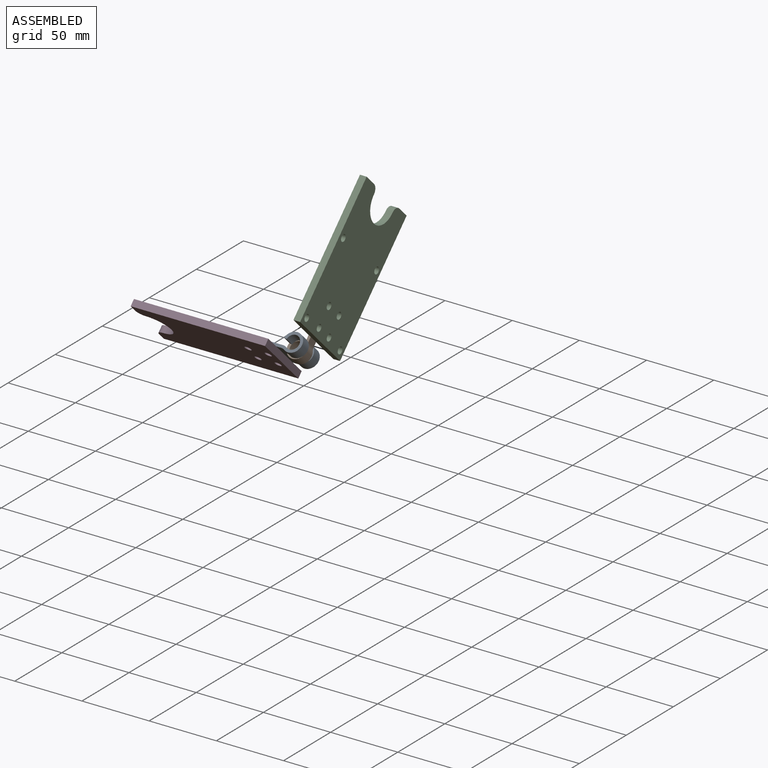
[diagram: assembled view]
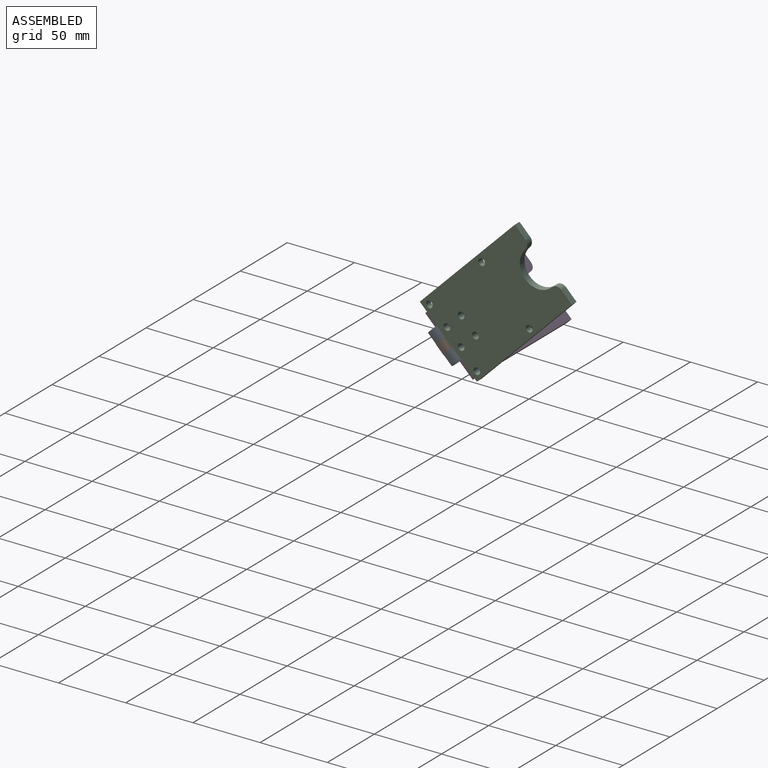
[diagram: assembled view, second angle]
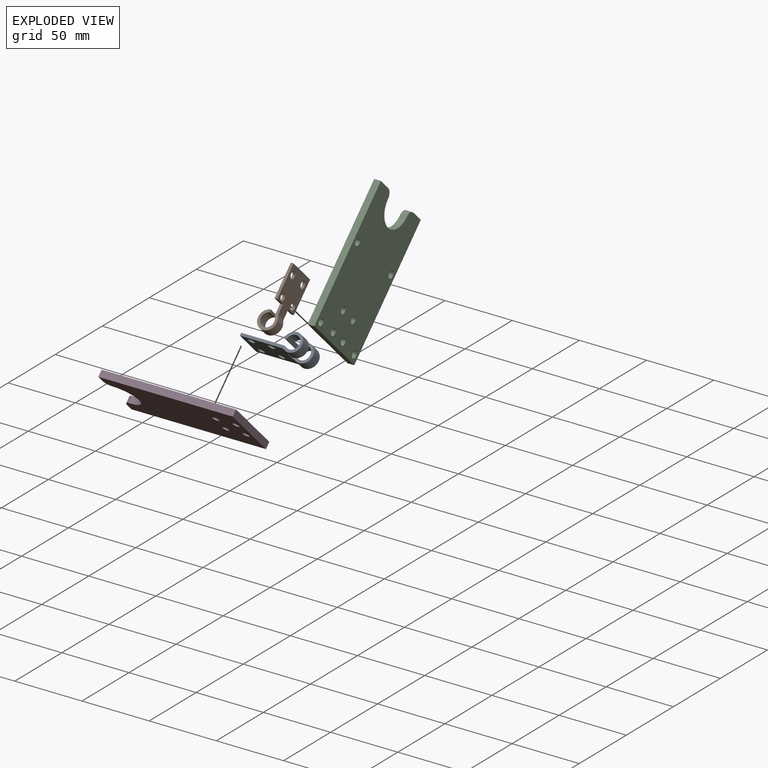
[diagram: exploded view]
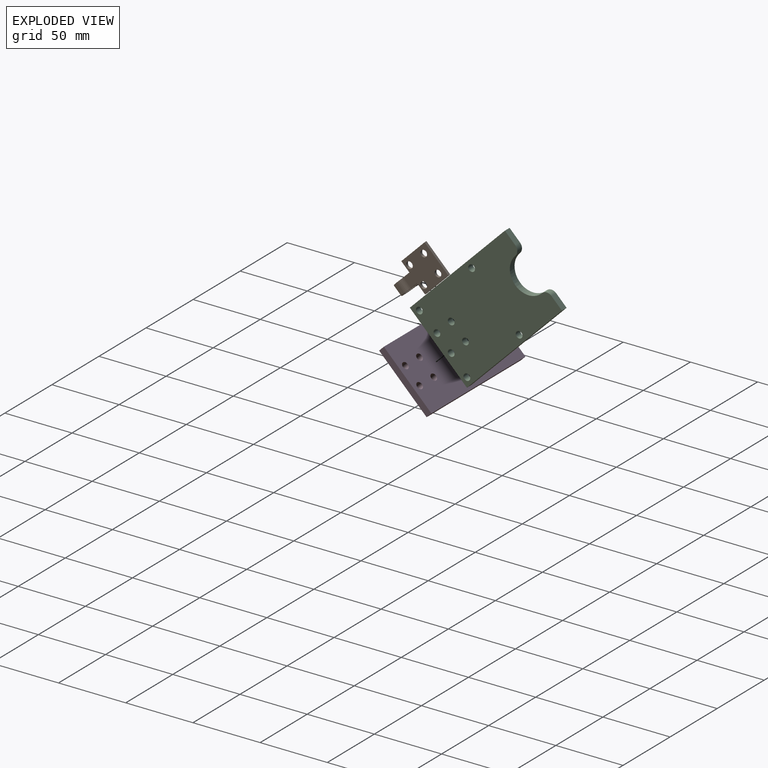
[diagram: exploded view, second angle]
ASSEMBLY  parts=4 mates=3
PART A: 21 faces, bbox 43.6x25x14 mm
  f0: cylinder r=5mm len=8.5mm, axis (0,1,0), area 21.6mm2, adj f1,f7,f11,f18
  f1: cylinder r=7mm len=25mm, axis (0,1,0), area 626.5mm2, adj f0,f2,f8,f11,f12,f17,f18,f20
  f2: plane 25x1.98mm, normal (-0.16,0,-0.99), area 42.6mm2, adj f1,f3,f9,f11,f12,f17,f18,f20
  f3: cylinder r=5mm len=10mm, axis (0,1,0), area 217.4mm2, adj f2,f4,f11,f18
  f4: cylinder r=5mm len=8.5mm, axis (0,1,0), area 23.8mm2, adj f3,f5,f11,f18
  f5: plane 31.27x25mm, normal (0,0,1), area 698.7mm2, adj f4,f6,f10,f11,f12,f13,f14,f15
  f6: plane 25x2mm, normal (-1,0,0), area 50mm2, adj f5,f7,f11,f12
  f7: plane 30.72x25mm, normal (0,0,-1), area 689.4mm2, adj f0,f6,f8,f11,f12,f13,f14,f15
  f8: cylinder r=5mm len=8.5mm, axis (0,1,0), area 21.6mm2, adj f1,f7,f12,f20
  f9: cylinder r=5mm len=10mm, axis (0,1,0), area 217.4mm2, adj f2,f10,f12,f20
  f10: cylinder r=5mm len=8.5mm, axis (0,1,0), area 23.8mm2, adj f5,f9,f12,f20
  f11: plane 43.57x14mm, normal (0,-1,0), area 128.5mm2, adj f0,f1,f2,f3,f4,f5,f6,f7
  f12: plane 43.57x14mm, normal (0,1,0), area 128.5mm2, adj f1,f2,f5,f6,f7,f8,f9,f10
  f13: cylinder r=2.5mm len=5mm, axis (0,0,1), area 31.4mm2, adj f5,f7
  f14: cylinder r=2.5mm len=5mm, axis (0,0,1), area 31.4mm2, adj f5,f7
  f15: cylinder r=2.5mm len=5mm, axis (0,0,1), area 31.4mm2, adj f5,f7
  f16: cylinder r=2.5mm len=5mm, axis (0,0,1), area 31.4mm2, adj f5,f7
  f17: plane 8x2.92mm, normal (1,0,0), area 23.3mm2, adj f1,f2,f18,f20
  f18: plane 14x12.85mm, normal (0,1,0), area 65.2mm2, adj f0,f1,f2,f3,f4,f5,f17,f19
  f19: plane 8x2mm, normal (1,0,0), area 16mm2, adj f5,f7,f18,f20
  f20: plane 14x12.85mm, normal (0,-1,0), area 65.2mm2, adj f1,f2,f5,f8,f9,f10,f17,f19
PART B: 18 faces, bbox 43.6x25x14 mm
  f0: plane 30.72x25mm, normal (0,0,-1), area 584.2mm2, adj f1,f7,f8,f9,f10,f11,f12,f13
  f1: cylinder r=5mm len=8mm, axis (0,1,0), area 20.4mm2, adj f0,f2,f14,f16
  f2: cylinder r=7mm len=14mm, axis (0,1,0), area 283.6mm2, adj f1,f3,f14,f16
  f3: plane 8x1.98mm, normal (-0.16,0,-0.99), area 16mm2, adj f2,f4,f14,f16
  f4: cylinder r=5mm len=10mm, axis (0,1,0), area 204.6mm2, adj f3,f5,f14,f16
  f5: cylinder r=5mm len=8mm, axis (0,1,0), area 22.4mm2, adj f4,f6,f14,f16
  f6: plane 31.27x25mm, normal (0,0,1), area 588.6mm2, adj f5,f7,f8,f9,f10,f11,f12,f13
  f7: plane 25x2mm, normal (-1,0,0), area 50mm2, adj f0,f6,f8,f9
  f8: plane 24.53x2mm, normal (0,-1,0), area 49.1mm2, adj f0,f6,f7,f17
  f9: plane 24.53x2mm, normal (0,1,0), area 49.1mm2, adj f0,f6,f7,f15
  f10: cylinder r=2.5mm len=5mm, axis (0,0,1), area 31.4mm2, adj f0,f6
  f11: cylinder r=2.5mm len=5mm, axis (0,0,1), area 31.4mm2, adj f0,f6
  f12: cylinder r=2.5mm len=5mm, axis (0,0,1), area 31.4mm2, adj f0,f6
  f13: cylinder r=2.5mm len=5mm, axis (0,0,1), area 31.4mm2, adj f0,f6
  f14: plane 19.04x14mm, normal (0,1,0), area 79.4mm2, adj f0,f1,f2,f3,f4,f5,f6,f15
  f15: plane 8.5x2mm, normal (1,0,0), area 17mm2, adj f0,f6,f9,f14
  f16: plane 19.04x14mm, normal (0,-1,0), area 79.4mm2, adj f0,f1,f2,f3,f4,f5,f6,f17
  f17: plane 8.5x2mm, normal (1,0,0), area 17mm2, adj f0,f6,f8,f16
PART C: 18 faces, bbox 100x60x5 mm
  f0: plane 11x5mm, normal (-1,0,0), area 55mm2, adj f5,f6,f7,f16
  f1: cylinder r=14mm len=28mm, axis (0,0,-1), area 219.9mm2, adj f6,f7,f16,f17
  f2: plane 11x5mm, normal (-1,0,0), area 55mm2, adj f3,f6,f7,f17
  f3: plane 100x5mm, normal (0,-1,0), area 500mm2, adj f2,f4,f6,f7
  f4: plane 60x5mm, normal (1,0,0), area 300mm2, adj f3,f5,f6,f7
  f5: plane 100x5mm, normal (0,1,0), area 500mm2, adj f0,f4,f6,f7
  f6: plane 100x60mm, normal (0,0,1), area 5384.3mm2, adj f0,f1,f2,f3,f4,f5,f8,f9
  f7: plane 100x60mm, normal (0,0,-1), area 5384.3mm2, adj f0,f1,f2,f3,f4,f5,f8,f9
  f8: cylinder r=2.5mm len=5mm, axis (0,0,-1), area 78.5mm2, adj f6,f7
  f9: cylinder r=2.5mm len=5mm, axis (0,0,-1), area 78.5mm2, adj f6,f7
  f10: cylinder r=2.5mm len=5mm, axis (0,0,-1), area 78.5mm2, adj f6,f7
  f11: cylinder r=2.5mm len=5mm, axis (0,0,-1), area 78.5mm2, adj f6,f7
  f12: cylinder r=2.5mm len=5mm, axis (0,0,-1), area 78.5mm2, adj f6,f7
  f13: cylinder r=2.5mm len=5mm, axis (0,0,-1), area 78.5mm2, adj f6,f7
  f14: cylinder r=2.5mm len=5mm, axis (0,0,-1), area 78.5mm2, adj f6,f7
  f15: cylinder r=2.5mm len=5mm, axis (0,0,-1), area 78.5mm2, adj f6,f7
  f16: cylinder r=5mm len=5mm, axis (0,0,1), area 39.3mm2, adj f0,f1,f6,f7
  f17: cylinder r=5mm len=5mm, axis (0,0,-1), area 39.3mm2, adj f1,f2,f6,f7
PART D: 14 faces, bbox 100x50x5 mm
  f0: plane 7x5mm, normal (-1,0,0), area 35mm2, adj f5,f6,f7,f12
  f1: cylinder r=13mm len=26mm, axis (0,0,-1), area 204.2mm2, adj f6,f7,f12,f13
  f2: plane 7x5mm, normal (-1,0,0), area 35mm2, adj f3,f6,f7,f13
  f3: plane 100x5mm, normal (0,-1,0), area 500mm2, adj f2,f4,f6,f7
  f4: plane 50x5mm, normal (1,0,0), area 250mm2, adj f3,f5,f6,f7
  f5: plane 100x5mm, normal (0,1,0), area 500mm2, adj f0,f4,f6,f7
  f6: plane 100x50mm, normal (0,0,1), area 4515.3mm2, adj f0,f1,f2,f3,f4,f5,f8,f9
  f7: plane 100x50mm, normal (0,0,-1), area 4515.3mm2, adj f0,f1,f2,f3,f4,f5,f8,f9
  f8: cylinder r=2.5mm len=5mm, axis (0,0,-1), area 78.5mm2, adj f6,f7
  f9: cylinder r=2.5mm len=5mm, axis (0,0,-1), area 78.5mm2, adj f6,f7
  f10: cylinder r=2.5mm len=5mm, axis (0,0,-1), area 78.5mm2, adj f6,f7
  f11: cylinder r=2.5mm len=5mm, axis (0,0,-1), area 78.5mm2, adj f6,f7
  f12: cylinder r=5mm len=5mm, axis (0,0,1), area 39.3mm2, adj f0,f1,f6,f7
  f13: cylinder r=5mm len=5mm, axis (0,0,-1), area 39.3mm2, adj f1,f2,f6,f7
PLACE A rot(axis=(-1,0,0),45deg) t=(94.88,27.38,18.52)mm
PLACE B rot(axis=(0.68,-0.28,-0.68),148.6deg) t=(-4.27,-25.18,1.31)mm
PLACE C rot(axis=(-0.36,0.86,-0.36),98.4deg) t=(-41.13,104.18,155.42)mm
PLACE D rot(axis=(-1,0,0),45deg) t=(145.81,107.32,-16.37)mm
MATE revolute B.f14 <-> A.f1  axis (0,-0.71,0.71) through (-46,45.65,60.12)mm
MATE fastened D.f11 <-> A.f16  axis (0,0.71,0.71) through (-76.57,39.3,58.73)mm
MATE fastened C.f14 <-> B.f11  axis (-1,0,0) through (-41.13,53.62,73.05)mm
